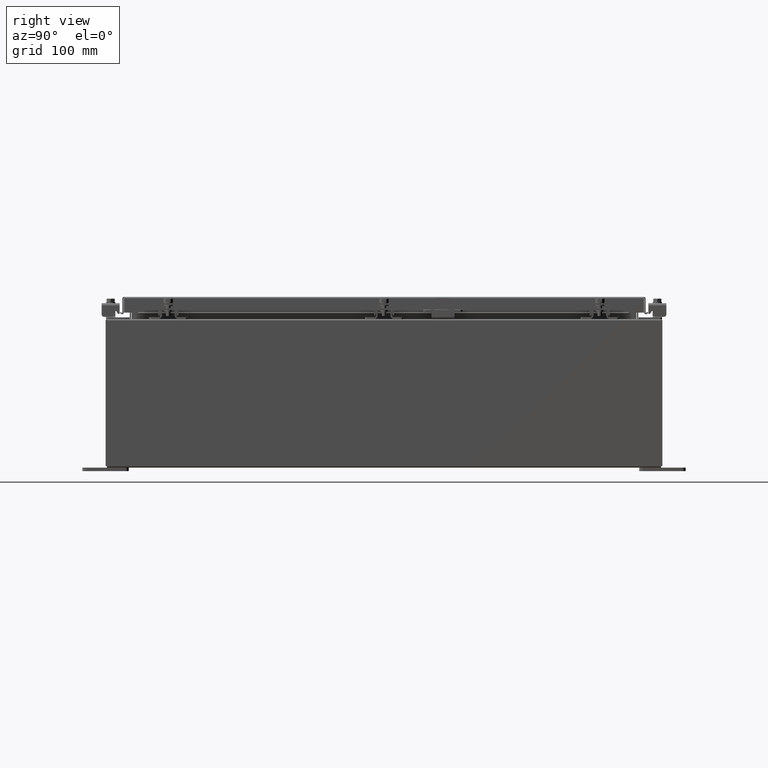
[diagram: clean part render]
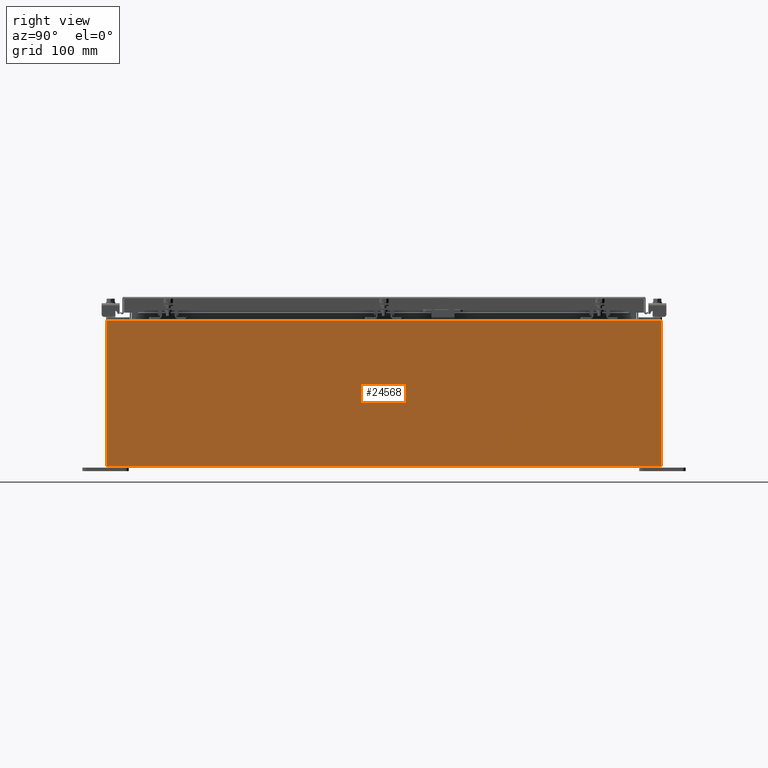
[diagram: same view with one face highlighted and labeled with its STEP entity id]
A machine part, right view. The second image highlights one B-rep face of the part: STEP entity #24568.
In plain terms, the highlighted planar face has unit normal (-1, 0, 0).
Its self-contained STEP definition (entity closure, byte-faithful):
#21 = DIRECTION ( 'NONE',  ( 3.584876173029202900E-015, 0.0000000000000000000, 1.000000000000000000 ) ) ;
#594 = EDGE_CURVE ( 'NONE', #33182, #2884, #6422, .T. ) ;
#2682 = CARTESIAN_POINT ( 'NONE',  ( 10.00000000000002800, -14.92529999999999800, 7.837599999999998300 ) ) ;
#2846 = VECTOR ( 'NONE', #21, 39.37007874015748100 ) ;
#2884 = VERTEX_POINT ( 'NONE', #2682 ) ;
#3257 = EDGE_LOOP ( 'NONE', ( #32966, #30691, #33478, #16611 ) ) ;
#3752 = PLANE ( 'NONE',  #12410 ) ;
#3826 = EDGE_CURVE ( 'NONE', #22246, #5474, #24255, .T. ) ;
#5474 = VERTEX_POINT ( 'NONE', #18964 ) ;
#6422 = LINE ( 'NONE', #12519, #36625 ) ;
#7753 = CARTESIAN_POINT ( 'NONE',  ( 10.00000000000002800, 14.92530000000000700, 7.837599999999992100 ) ) ;
#9523 = LINE ( 'NONE', #21290, #17313 ) ;
#9662 = DIRECTION ( 'NONE',  ( -3.584876173029202900E-015, 0.0000000000000000000, -1.000000000000000000 ) ) ;
#12410 = AXIS2_PLACEMENT_3D ( 'NONE', #12469, #35982, #18456 ) ;
#12469 = CARTESIAN_POINT ( 'NONE',  ( 10.00000000000000000, 0.0000000000000000000, -3.611161566624948200E-014 ) ) ;
#12519 = CARTESIAN_POINT ( 'NONE',  ( 10.00000000000002800, 14.92530000000000700, 7.837599999999992100 ) ) ;
#12553 = DIRECTION ( 'NONE',  ( -0.0000000000000000000, -1.000000000000000000, -0.0000000000000000000 ) ) ;
#14125 = EDGE_CURVE ( 'NONE', #2884, #5474, #9523, .T. ) ;
#14657 = CARTESIAN_POINT ( 'NONE',  ( 10.00000000000000000, 14.92530000000000500, -3.611161566624948200E-014 ) ) ;
#16611 = ORIENTED_EDGE ( 'NONE', *, *, #32720, .T. ) ;
#17313 = VECTOR ( 'NONE', #9662, 39.37007874015748100 ) ;
#18380 = DIRECTION ( 'NONE',  ( -0.0000000000000000000, -1.000000000000000000, -0.0000000000000000000 ) ) ;
#18403 = LINE ( 'NONE', #14657, #2846 ) ;
#18456 = DIRECTION ( 'NONE',  ( 3.584876173029202900E-015, 0.0000000000000000000, 1.000000000000000000 ) ) ;
#18964 = CARTESIAN_POINT ( 'NONE',  ( 10.00000000000000000, -14.92529999999999600, 0.01299999999999983500 ) ) ;
#21290 = CARTESIAN_POINT ( 'NONE',  ( 10.00000000000000000, -14.92529999999999600, -3.611161566624948200E-014 ) ) ;
#22036 = CARTESIAN_POINT ( 'NONE',  ( 10.00000000000000000, 14.92530000000000500, 0.01299999999999985200 ) ) ;
#22246 = VERTEX_POINT ( 'NONE', #22036 ) ;
#24255 = LINE ( 'NONE', #27069, #31104 ) ;
#24568 = ADVANCED_FACE ( 'NONE', ( #31647 ), #3752, .F. ) ;
#27069 = CARTESIAN_POINT ( 'NONE',  ( 10.00000000000000000, -14.92529999999999600, 0.01299999999999985200 ) ) ;
#30691 = ORIENTED_EDGE ( 'NONE', *, *, #14125, .T. ) ;
#31104 = VECTOR ( 'NONE', #12553, 39.37007874015748100 ) ;
#31647 = FACE_OUTER_BOUND ( 'NONE', #3257, .T. ) ;
#32720 = EDGE_CURVE ( 'NONE', #22246, #33182, #18403, .T. ) ;
#32966 = ORIENTED_EDGE ( 'NONE', *, *, #594, .T. ) ;
#33182 = VERTEX_POINT ( 'NONE', #7753 ) ;
#33478 = ORIENTED_EDGE ( 'NONE', *, *, #3826, .F. ) ;
#35982 = DIRECTION ( 'NONE',  ( -1.000000000000000000, 0.0000000000000000000, 3.584876173029202900E-015 ) ) ;
#36625 = VECTOR ( 'NONE', #18380, 39.37007874015748100 ) ;